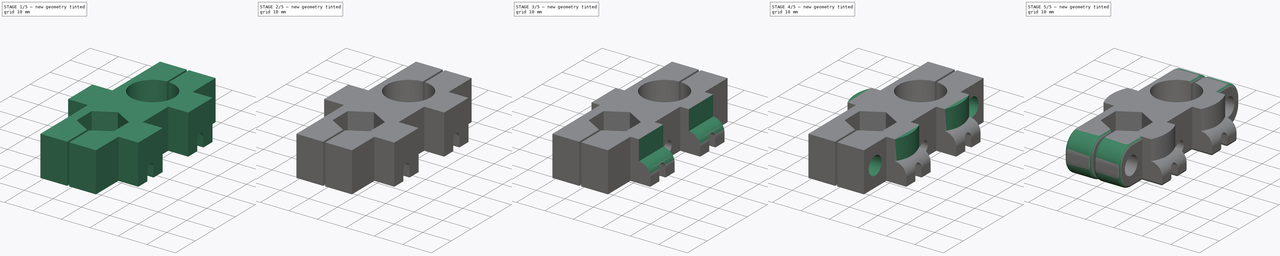
[diagram: build sequence overview — one tinted view per stage of 5, left to right]
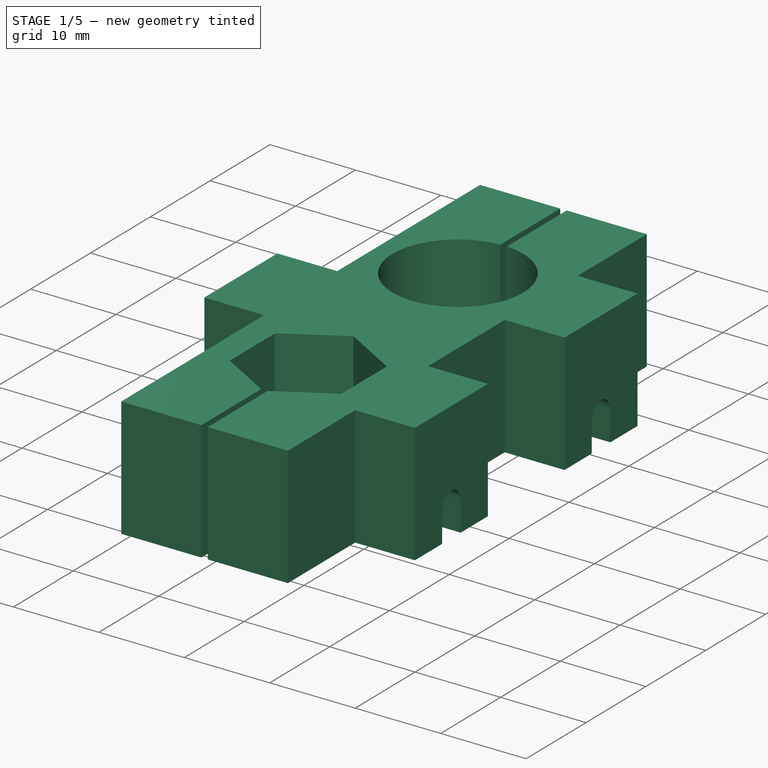
[diagram: stage 1 of 5 — iso view after this stage's code; geometry added in this stage tinted green]
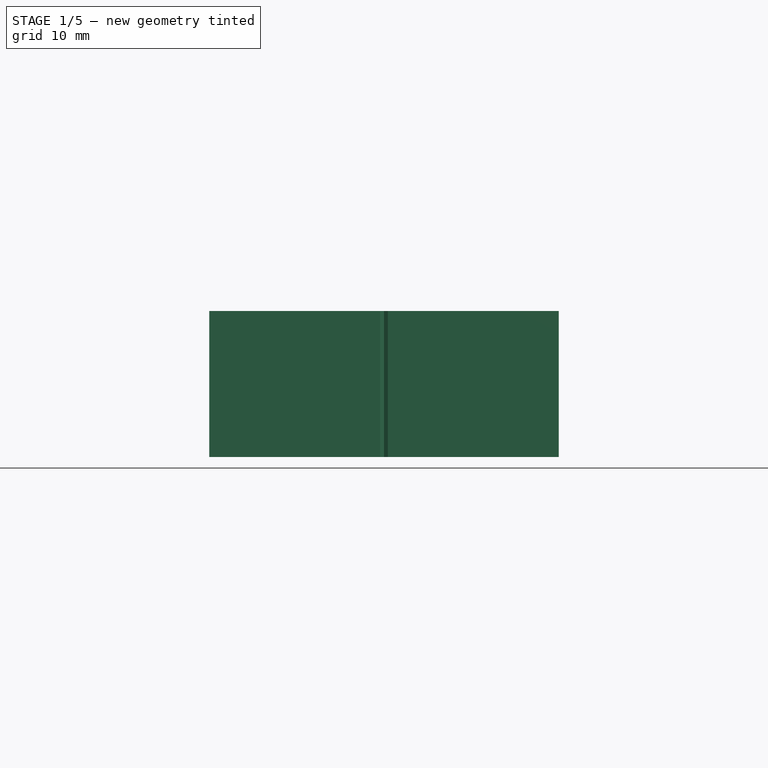
[diagram: stage 1 of 5 — front view after this stage's code; geometry added in this stage tinted green]
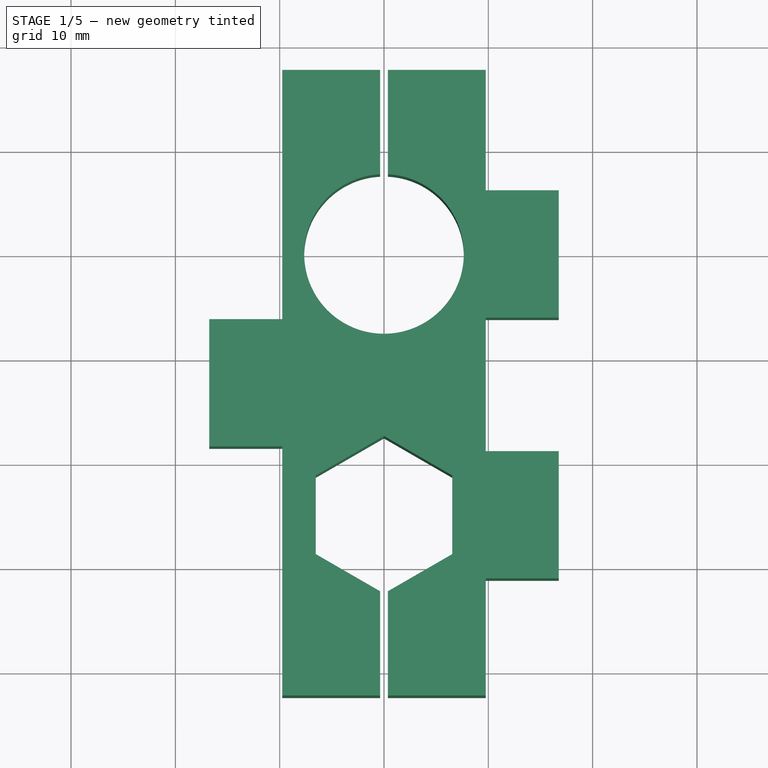
[diagram: stage 1 of 5 — top view after this stage's code; geometry added in this stage tinted green]
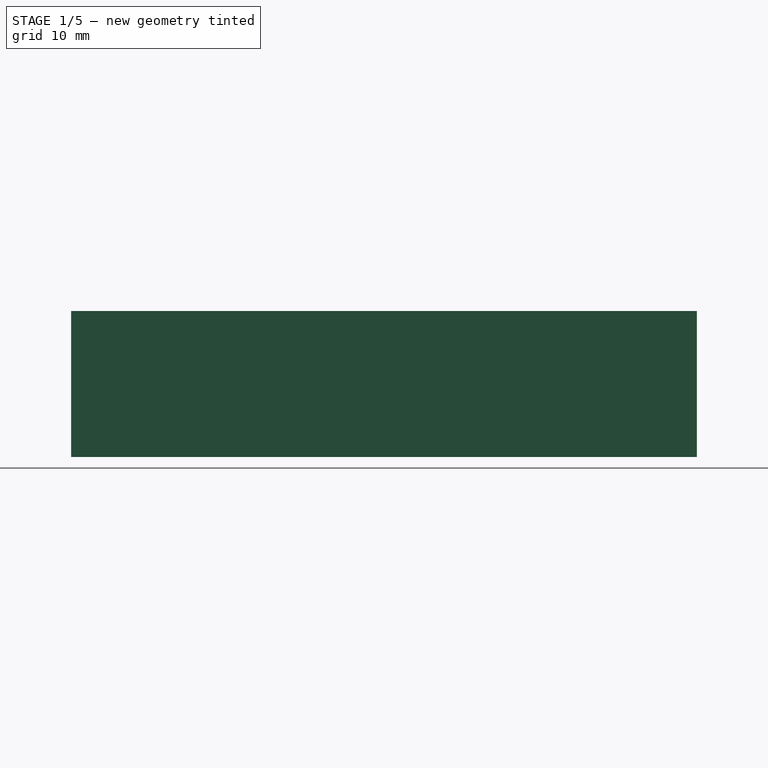
[diagram: stage 1 of 5 — right view after this stage's code; geometry added in this stage tinted green]
FCSTD DOCUMENT  (FreeCAD 0.16RUnknown)
Label: nut-and-bearing-mount.002
License: All rights reserved
LicenseURL: http://en.wikipedia.org/wiki/All_rights_reserved
objects: Sketcher::SketchObject×14, PartDesign::Pocket×12, Part::Extrusion×2, Part::Fillet×2, Part::MultiFuse×1
note: 43 computed .brp shape members not serialized (recipe doc carries the construction recipe); baked Part::Feature solids carry a one-line shape summary decoded from their .brp

FEATURE [Sketcher::SketchObject] Sketch
  sketch-geometry (38):
    g0: LineSegment [constr] StartX=-0.375 StartY=7.6408 StartZ=0 EndX=0.375 EndY=7.6408 EndZ=0
    g1: Circle [constr] CenterX=0 CenterY=-25 CenterZ=0 NormalX=0 NormalY=0 NormalZ=1 Radius=7.55
    g2: LineSegment StartX=-6.53849 StartY=-28.775 StartZ=0 EndX=-6.53849 EndY=-21.225 EndZ=0
    g3: LineSegment StartX=-6.53849 StartY=-21.225 StartZ=0 EndX=0 EndY=-17.45 EndZ=0
    g4: LineSegment StartX=0 StartY=-17.45 StartZ=0 EndX=6.53849 EndY=-21.225 EndZ=0
    g5: LineSegment StartX=6.53849 StartY=-21.225 StartZ=0 EndX=6.53849 EndY=-28.775 EndZ=0
    g6: LineSegment StartX=6.53849 StartY=-28.775 StartZ=0 EndX=0.375 EndY=-32.3335 EndZ=0
    g7: LineSegment [constr] StartX=0.375 StartY=-32.3335 StartZ=0 EndX=0 EndY=-32.55 EndZ=0
    g8: LineSegment [constr] StartX=0 StartY=-32.55 StartZ=0 EndX=-0.375 EndY=-32.3335 EndZ=0
    g9: LineSegment StartX=-0.375 StartY=-32.3335 StartZ=0 EndX=-6.53849 EndY=-28.775 EndZ=0
    g10: LineSegment [constr] StartX=-0.375 StartY=-32.3335 StartZ=0 EndX=0.375 EndY=-32.3335 EndZ=0
    g11: LineSegment StartX=-0.375 StartY=7.6408 StartZ=0 EndX=-0.375 EndY=17.6408 EndZ=0
    g12: LineSegment StartX=-0.375 StartY=17.6408 StartZ=0 EndX=-9.75 EndY=17.6408 EndZ=0
    g13: LineSegment StartX=-9.75 StartY=17.6408 StartZ=0 EndX=-9.75 EndY=-6.24635 EndZ=0
    g14: LineSegment StartX=-9.75 StartY=-6.24635 StartZ=0 EndX=-16.75 EndY=-6.24635 EndZ=0
    g15: LineSegment StartX=-16.75 StartY=-6.24635 StartZ=0 EndX=-16.75 EndY=-18.4463 EndZ=0
    g16: LineSegment StartX=-16.75 StartY=-18.4463 StartZ=0 EndX=-9.75 EndY=-18.4463 EndZ=0
    g17: LineSegment StartX=-9.75 StartY=-18.4463 StartZ=0 EndX=-9.75 EndY=-42.3335 EndZ=0
    g18: LineSegment StartX=-9.75 StartY=-42.3335 StartZ=0 EndX=-0.375 EndY=-42.3335 EndZ=0
    g19: LineSegment StartX=-0.375 StartY=-42.3335 StartZ=0 EndX=-0.375 EndY=-32.3335 EndZ=0
    g20: LineSegment StartX=0.375 StartY=7.6408 StartZ=0 EndX=0.375 EndY=17.6408 EndZ=0
    g21: LineSegment StartX=0.375 StartY=17.6408 StartZ=0 EndX=9.75 EndY=17.6408 EndZ=0
    g22: LineSegment StartX=9.75 StartY=17.6408 StartZ=0 EndX=9.75 EndY=6.1 EndZ=0
    g23: LineSegment StartX=9.75 StartY=6.1 StartZ=0 EndX=16.75 EndY=6.1 EndZ=0
    g24: LineSegment StartX=16.75 StartY=6.1 StartZ=0 EndX=16.75 EndY=-6.1 EndZ=0
    g25: LineSegment StartX=16.75 StartY=-6.1 StartZ=0 EndX=9.75 EndY=-6.1 EndZ=0
    g26: LineSegment StartX=9.75 StartY=-6.1 StartZ=0 EndX=9.75 EndY=-18.9 EndZ=0
    g27: LineSegment StartX=9.75 StartY=-18.9 StartZ=0 EndX=16.75 EndY=-18.9 EndZ=0
    g28: LineSegment StartX=16.75 StartY=-18.9 StartZ=0 EndX=16.75 EndY=-31.1 EndZ=0
    g29: LineSegment StartX=16.75 StartY=-31.1 StartZ=0 EndX=9.75 EndY=-31.1 EndZ=0
    g30: LineSegment StartX=9.75 StartY=-31.1 StartZ=0 EndX=9.75 EndY=-42.3335 EndZ=0
    g31: LineSegment StartX=9.75 StartY=-42.3335 StartZ=0 EndX=0.375 EndY=-42.3335 EndZ=0
    g32: LineSegment StartX=0.375 StartY=-42.3335 StartZ=0 EndX=0.375 EndY=-32.3335 EndZ=0
    g33: ArcOfCircle CenterX=0 CenterY=0 CenterZ=0 NormalX=0 NormalY=0 NormalZ=1 Radius=7.65 StartAngle=1.61984 EndAngle=7.80494
    g34: LineSegment [constr] StartX=9.75 StartY=6.1 StartZ=0 EndX=0 EndY=0 EndZ=0
    g35: LineSegment [constr] StartX=0 StartY=0 StartZ=0 EndX=9.75 EndY=-6.1 EndZ=0
    g36: LineSegment [constr] StartX=9.75 StartY=-18.9 StartZ=0 EndX=0 EndY=-25 EndZ=0
    g37: LineSegment [constr] StartX=0 StartY=-25 StartZ=0 EndX=9.75 EndY=-31.1 EndZ=0
  constraints (107):
    c: Horizontal(g0)
    c: DistanceX(g0,g0) = 0.75
    c: Vertical(g2)
    c: Coincident(g2,g3)
    c: Coincident(g3,g4)
    c: Coincident(g4,g5)
    c: Vertical(g5)
    c: Coincident(g5,g6)
    c: Coincident(g6,g7)
    c: Coincident(g7,g8)
    c: Coincident(g8,g9)
    c: Coincident(g2,g9)
    c: Horizontal(g10)
    c: Coincident(g6,g10)
    c: Coincident(g8,g10)
    c: Parallel(g8,g9)
    c: Parallel(g7,g6)
    c: Equal(g8,g7)
    c: PointOnObject(g2,g1)
    c: PointOnObject(g7,g1)
    c: PointOnObject(g5,g1)
    c: PointOnObject(g4,g1)
    c: PointOnObject(g3,g1)
    c: PointOnObject(g2,g1)
    c: Equal(g2,g3)
    c: Equal(g3,g4)
    c: Equal(g4,g5)
    c: Equal(g10,g0)
    c: PointOnObject(g1,g-2)
    c: Vertical(g11)
    c: Coincident(g11,g12)
    c: Horizontal(g12)
    c: Coincident(g12,g13)
    c: Vertical(g13)
    c: Coincident(g13,g14)
    c: Horizontal(g14)
    c: Coincident(g14,g15)
    c: Vertical(g15)
    c: Coincident(g15,g16)
    c: Horizontal(g16)
    c: Coincident(g16,g17)
    c: Vertical(g17)
    c: Coincident(g17,g18)
    c: Horizontal(g18)
    c: Coincident(g18,g19)
    c: Vertical(g19)
    c: Vertical(g20)
    c: Coincident(g20,g21)
    c: Horizontal(g21)
    c: Coincident(g21,g22)
    c: Vertical(g22)
    c: Coincident(g22,g23)
    c: Horizontal(g23)
    c: Coincident(g23,g24)
    c: Vertical(g24)
    c: Coincident(g24,g25)
    c: Horizontal(g25)
    c: Coincident(g25,g26)
    c: Vertical(g26)
    c: Coincident(g26,g27)
    c: Horizontal(g27)
    c: Coincident(g27,g28)
    c: Vertical(g28)
    c: Coincident(g28,g29)
    c: Horizontal(g29)
    c: Coincident(g29,g30)
    c: Vertical(g30)
    c: Coincident(g30,g31)
    c: Horizontal(g31)
    c: Coincident(g31,g32)
    c: Vertical(g32)
    c: Coincident(g8,g19)
    c: Coincident(g6,g32)
    c: Coincident(g33,g-1)
    c: Coincident(g0,g11)
    c: Coincident(g0,g33)
    c: Coincident(g0,g20)
    c: Coincident(g0,g33)
    c: Radius(g1) = 7.55
    c: Radius(g33) = 7.65
    c: Equal(g23,g14)
    c: Equal(g23,g27)
    c: Equal(g14,g16)
    c: Equal(g27,g29)
    c: Equal(g24,g15)
    c: Equal(g24,g28)
    c: DistanceY(g24,g24) = 12.2
    c: DistanceX(g23,g23) = 7
    c: Coincident(g34,g35)
    c: Coincident(g36,g37)
    c: Coincident(g26,g36)
    c: Coincident(g1,g36)
    c: Coincident(g29,g37)
    c: Coincident(g25,g35)
    c: Coincident(g22,g34)
    c: Coincident(g33,g34)
    c: Equal(g37,g36)
    c: Equal(g35,g34)
    c: Equal(g18,g31)
    c: Equal(g19,g32)
    c: Equal(g11,g20)
    c: Equal(g11,g19)
    c: DistanceY(g11,g11) = 10
    c: DistanceX(g16,g26) = 19.5
    c: Equal(g12,g21)
    c: Equal(g17,g13)
    c: DistanceY(g1,g-1) = 25
FEATURE [Part::Extrusion] Extrude
  Base = -> Sketch
  Dir = (0,0,14)
  Solid = true
FEATURE [Sketcher::SketchObject] Sketch001
  ExternalGeometry = -> [Extrude]
  Placement = pos=(0,0,0) rot=(1,0,0;3.14159rad)
  Support = -> Extrude [Face30]
  sketch-geometry (30):
    g0: LineSegment [constr] StartX=-16.75 StartY=18.4463 StartZ=0 EndX=-16.75 EndY=13.8963 EndZ=0
    g1: LineSegment [constr] StartX=-16.75 StartY=6.24635 StartZ=0 EndX=-16.75 EndY=10.7963 EndZ=0
    g2: LineSegment [constr] StartX=16.75 StartY=31.1 StartZ=0 EndX=16.75 EndY=26.55 EndZ=0
    g3: LineSegment [constr] StartX=16.75 StartY=23.45 StartZ=0 EndX=16.75 EndY=18.9 EndZ=0
    g4: LineSegment [constr] StartX=16.75 StartY=6.1 StartZ=0 EndX=16.75 EndY=1.55 EndZ=0
    g5: LineSegment [constr] StartX=16.75 StartY=-1.55 StartZ=0 EndX=16.75 EndY=-6.1 EndZ=0
    g6: LineSegment StartX=-16.75 StartY=10.7963 StartZ=0 EndX=-16.75 EndY=13.8963 EndZ=0
    g7: LineSegment StartX=-16.75 StartY=13.8963 StartZ=0 EndX=-12.75 EndY=13.8963 EndZ=0
    g8: LineSegment StartX=-12.75 StartY=13.8963 StartZ=0 EndX=-12.75 EndY=15.4713 EndZ=0
    g9: LineSegment StartX=-12.75 StartY=15.4713 StartZ=0 EndX=-10.5 EndY=15.4713 EndZ=0
    g10: LineSegment StartX=-10.5 StartY=15.4713 StartZ=0 EndX=-10.5 EndY=9.22135 EndZ=0
    g11: LineSegment StartX=-10.5 StartY=9.22135 StartZ=0 EndX=-12.75 EndY=9.22135 EndZ=0
    g12: LineSegment StartX=-12.75 StartY=9.22135 StartZ=0 EndX=-12.75 EndY=10.7963 EndZ=0
    g13: LineSegment StartX=-12.75 StartY=10.7963 StartZ=0 EndX=-16.75 EndY=10.7963 EndZ=0
    g14: LineSegment StartX=16.75 StartY=23.45 StartZ=0 EndX=16.75 EndY=26.55 EndZ=0
    g15: LineSegment StartX=16.75 StartY=26.55 StartZ=0 EndX=12.75 EndY=26.55 EndZ=0
    g16: LineSegment StartX=12.75 StartY=26.55 StartZ=0 EndX=12.75 EndY=28.125 EndZ=0
    g17: LineSegment StartX=12.75 StartY=28.125 StartZ=0 EndX=10.5 EndY=28.125 EndZ=0
    g18: LineSegment StartX=10.5 StartY=28.125 StartZ=0 EndX=10.5 EndY=21.875 EndZ=0
    g19: LineSegment StartX=10.5 StartY=21.875 StartZ=0 EndX=12.75 EndY=21.875 EndZ=0
    g20: LineSegment StartX=12.75 StartY=21.875 StartZ=0 EndX=12.75 EndY=23.45 EndZ=0
    g21: LineSegment StartX=12.75 StartY=23.45 StartZ=0 EndX=16.75 EndY=23.45 EndZ=0
    g22: LineSegment StartX=16.75 StartY=-1.55 StartZ=0 EndX=16.75 EndY=1.55 EndZ=0
    g23: LineSegment StartX=16.75 StartY=1.55 StartZ=0 EndX=12.75 EndY=1.55 EndZ=0
    g24: LineSegment StartX=12.75 StartY=1.55 StartZ=0 EndX=12.75 EndY=3.125 EndZ=0
    g25: LineSegment StartX=12.75 StartY=3.125 StartZ=0 EndX=10.5 EndY=3.125 EndZ=0
    g26: LineSegment StartX=10.5 StartY=3.125 StartZ=0 EndX=10.5 EndY=-3.125 EndZ=0
    g27: LineSegment StartX=10.5 StartY=-3.125 StartZ=0 EndX=12.75 EndY=-3.125 EndZ=0
    g28: LineSegment StartX=12.75 StartY=-3.125 StartZ=0 EndX=12.75 EndY=-1.55 EndZ=0
    g29: LineSegment StartX=12.75 StartY=-1.55 StartZ=0 EndX=16.75 EndY=-1.55 EndZ=0
  constraints (87):
    c: Vertical(g0)
    c: Vertical(g1)
    c: Vertical(g2)
    c: Vertical(g3)
    c: Vertical(g4)
    c: Vertical(g5)
    c: Vertical(g6)
    c: Coincident(g6,g7)
    c: Horizontal(g7)
    c: Coincident(g7,g8)
    c: Vertical(g8)
    c: Coincident(g8,g9)
    c: Horizontal(g9)
    c: Coincident(g9,g10)
    c: Vertical(g10)
    c: Coincident(g10,g11)
    c: Horizontal(g11)
    c: Coincident(g11,g12)
    c: Vertical(g12)
    c: Coincident(g12,g13)
    c: Horizontal(g13)
    c: Vertical(g14)
    c: Coincident(g14,g15)
    c: Horizontal(g15)
    c: Coincident(g15,g16)
    c: Vertical(g16)
    c: Coincident(g16,g17)
    c: Horizontal(g17)
    c: Coincident(g17,g18)
    c: Vertical(g18)
    c: Coincident(g18,g19)
    c: Horizontal(g19)
    c: Coincident(g19,g20)
    c: Vertical(g20)
    c: Coincident(g20,g21)
    c: Horizontal(g21)
    c: Vertical(g22)
    c: Coincident(g22,g23)
    c: Horizontal(g23)
    c: Coincident(g23,g24)
    c: Vertical(g24)
    c: Coincident(g24,g25)
    c: Horizontal(g25)
    c: Coincident(g25,g26)
    c: Vertical(g26)
    c: Coincident(g26,g27)
    c: Horizontal(g27)
    c: Coincident(g27,g28)
    c: Vertical(g28)
    c: Coincident(g28,g29)
    c: Horizontal(g29)
    c: Coincident(g22,g29)
    c: Coincident(g6,g13)
    c: Coincident(g14,g21)
    c: Coincident(g2,g14)
    c: Coincident(g3,g14)
    c: Coincident(g4,g22)
    c: Coincident(g5,g22)
    c: Coincident(g1,g6)
    c: Coincident(g0,g6)
    c: Equal(g0,g1)
    c: Equal(g12,g8)
    c: Equal(g20,g16)
    c: Equal(g2,g3)
    c: Equal(g4,g5)
    c: Equal(g28,g24)
    c: Equal(g23,g29)
    c: Equal(g21,g15)
    c: Equal(g7,g13)
    c: Equal(g18,g10)
    c: Equal(g18,g26)
    c: Equal(g14,g22)
    c: Equal(g14,g6)
    c: Equal(g15,g7)
    c: Equal(g15,g23)
    c: Equal(g17,g9)
    c: Equal(g17,g25)
    c: DistanceY(g18,g18) = 6.25
    c: DistanceY(g14,g14) = 3.1
    c: DistanceX(g15,g15) = 4
    c: DistanceX(g17,g17) = 2.25
    c: Coincident(g4,g-5)
    c: Coincident(g5,g-5)
    c: Coincident(g3,g-4)
    c: Coincident(g2,g-4)
    c: Coincident(g0,g-3)
    c: Coincident(g1,g-3)
FEATURE [PartDesign::Pocket] Pocket
  Length = 3.5
  Sketch = -> Sketch001
  Type = 0
FEATURE [Sketcher::SketchObject] Sketch002
  ExternalGeometry = -> [Pocket]
  Placement = pos=(16.75,0,0) rot=(0.57735,0.57735,0.57735;2.0944rad)
  Support = -> Pocket [Face11]
  sketch-geometry (4):
    g0: LineSegment StartX=-26.55 StartY=3.5 StartZ=0 EndX=-23.45 EndY=3.5 EndZ=0
    g1: LineSegment StartX=-1.55 StartY=3.5 StartZ=0 EndX=1.55 EndY=3.5 EndZ=0
    g2: ArcOfCircle CenterX=-25 CenterY=3.5 CenterZ=0 NormalX=0 NormalY=0 NormalZ=1 Radius=1.55 StartAngle=0 EndAngle=3.14159
    g3: ArcOfCircle CenterX=0 CenterY=3.5 CenterZ=0 NormalX=0 NormalY=0 NormalZ=1 Radius=1.55 StartAngle=0 EndAngle=3.14159
  constraints (12):
    c: Horizontal(g0)
    c: Horizontal(g1)
    c: PointOnObject(g3,g-4)
    c: Coincident(g1,g3)
    c: Coincident(g1,g-4)
    c: Coincident(g1,g3)
    c: Coincident(g1,g-4)
    c: PointOnObject(g2,g-3)
    c: Coincident(g0,g2)
    c: Coincident(g0,g-3)
    c: Coincident(g0,g2)
    c: Coincident(g0,g-3)
FEATURE [PartDesign::Pocket] Pocket001
  Length = 0
  Sketch = -> Sketch002
  Type = 3
  UpToFace = -> Pocket [Face17]
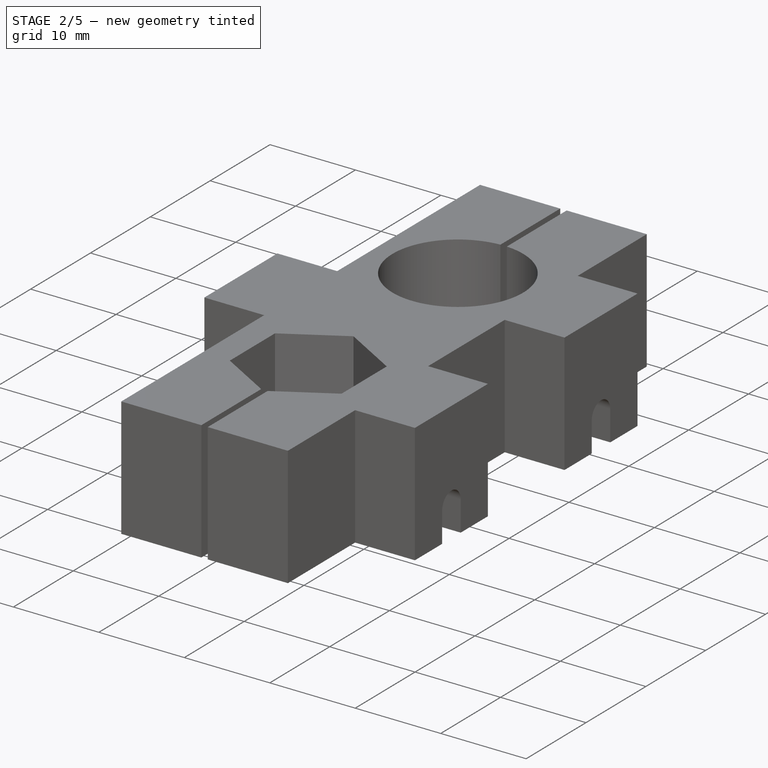
[diagram: stage 2 of 5 — iso view after this stage's code; geometry added in this stage tinted green]
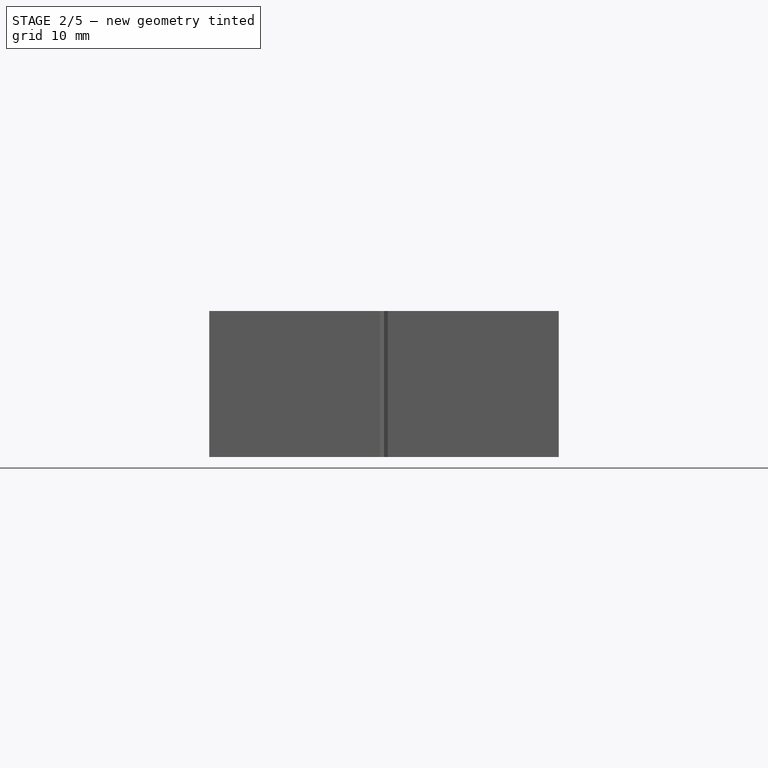
[diagram: stage 2 of 5 — front view after this stage's code; geometry added in this stage tinted green]
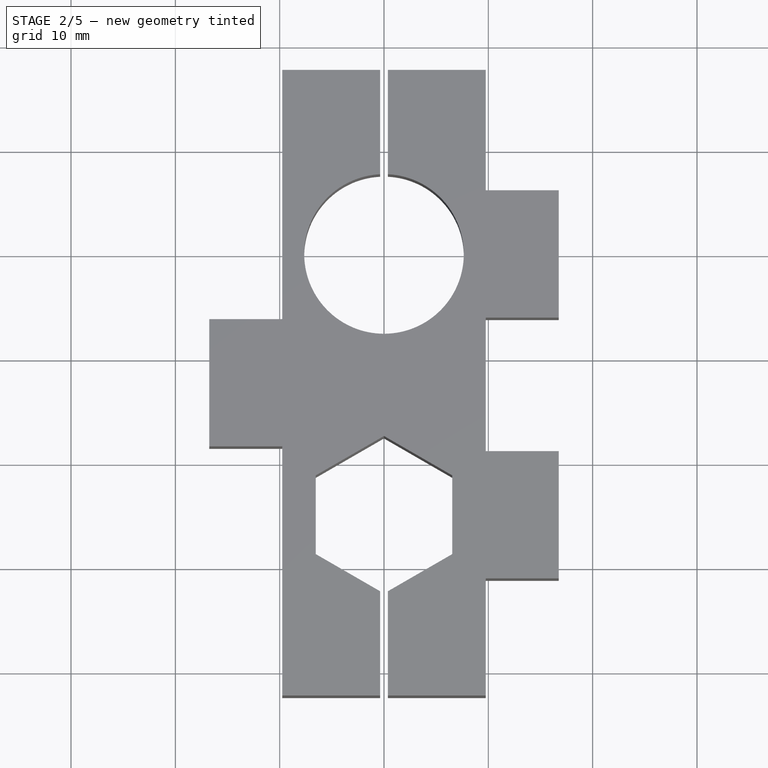
[diagram: stage 2 of 5 — top view after this stage's code; geometry added in this stage tinted green]
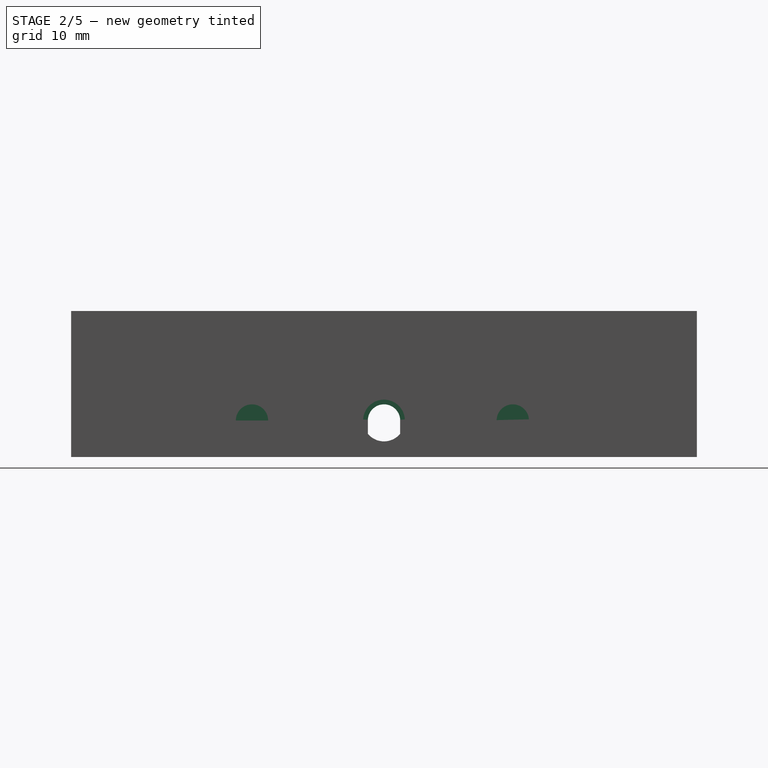
[diagram: stage 2 of 5 — right view after this stage's code; geometry added in this stage tinted green]
FEATURE [Sketcher::SketchObject] Sketch003
  ExternalGeometry = -> [Pocket001]
  Placement = pos=(-16.75,0,0) rot=(0.57735,-0.57735,-0.57735;2.0944rad)
  Support = -> Pocket001 [Face44]
  sketch-geometry (2):
    g0: LineSegment StartX=10.7963 StartY=3.5 StartZ=0 EndX=13.8963 EndY=3.5 EndZ=0
    g1: ArcOfCircle CenterX=12.3463 CenterY=3.5 CenterZ=0 NormalX=0 NormalY=0 NormalZ=1 Radius=1.55 StartAngle=0 EndAngle=3.14159
  constraints (6):
    c: Horizontal(g0)
    c: PointOnObject(g1,g-3)
    c: Coincident(g0,g1)
    c: Coincident(g0,g-3)
    c: Coincident(g0,g1)
    c: Coincident(g0,g-3)
FEATURE [PartDesign::Pocket] Pocket002
  Length = 0
  Sketch = -> Sketch003
  Type = 3
  UpToFace = -> Pocket001 [Face46]
FEATURE [Sketcher::SketchObject] Sketch004
  ExternalGeometry = -> [Pocket002]
  Placement = pos=(10.5,0,0) rot=(0.57735,0.57735,0.57735;2.0944rad)
  Support = -> Pocket002 [Face26]
  sketch-geometry (4):
    g0: LineSegment StartX=3.125 StartY=3.5 StartZ=0 EndX=-3.125 EndY=3.5 EndZ=0
    g1: LineSegment StartX=-21.875 StartY=3.5 StartZ=0 EndX=-28.125 EndY=3.5 EndZ=0
    g2: ArcOfCircle CenterX=0 CenterY=3.5 CenterZ=0 NormalX=0 NormalY=0 NormalZ=1 Radius=3.125 StartAngle=0 EndAngle=3.14159
    g3: ArcOfCircle CenterX=-25 CenterY=3.5 CenterZ=0 NormalX=0 NormalY=0 NormalZ=1 Radius=3.125 StartAngle=0 EndAngle=3.14159
  constraints (12):
    c: Horizontal(g0)
    c: Horizontal(g1)
    c: PointOnObject(g3,g-3)
    c: PointOnObject(g2,g-4)
    c: Coincident(g0,g2)
    c: Coincident(g0,g-4)
    c: Coincident(g0,g2)
    c: Coincident(g0,g-4)
    c: Coincident(g1,g3)
    c: Coincident(g1,g-3)
    c: Coincident(g1,g3)
    c: Coincident(g1,g-3)
FEATURE [PartDesign::Pocket] Pocket003
  Length = 0
  Sketch = -> Sketch004
  Type = 3
  UpToFace = -> Pocket002 [Face17]
FEATURE [Sketcher::SketchObject] Sketch005
  ExternalGeometry = -> [Pocket003]
  Placement = pos=(-10.5,0,0) rot=(0.57735,-0.57735,-0.57735;2.0944rad)
  Support = -> Pocket003 [Face48]
  sketch-geometry (2):
    g0: LineSegment StartX=9.22135 StartY=3.5 StartZ=0 EndX=15.4713 EndY=3.5 EndZ=0
    g1: ArcOfCircle CenterX=12.3463 CenterY=3.5 CenterZ=0 NormalX=0 NormalY=0 NormalZ=1 Radius=3.125 StartAngle=0 EndAngle=3.14159
  constraints (6):
    c: Horizontal(g0)
    c: PointOnObject(g1,g-3)
    c: Coincident(g0,g1)
    c: Coincident(g0,g-3)
    c: Coincident(g0,g1)
    c: Coincident(g0,g-3)
FEATURE [PartDesign::Pocket] Pocket004
  Length = 0
  Sketch = -> Sketch005
  Type = 3
  UpToFace = -> Pocket003 [Face50]
FEATURE [Sketcher::SketchObject] Sketch006
  ExternalGeometry = -> [Pocket004]
  Placement = pos=(-10.5,0,0) rot=(0.57735,-0.57735,-0.57735;2.0944rad)
  Support = -> Pocket004 [Face64]
  sketch-geometry (1):
    g0: Circle CenterX=12.3463 CenterY=3.5 CenterZ=0 NormalX=0 NormalY=0 NormalZ=1 Radius=2
  constraints (2):
    c: Coincident(g0,g-3)
    c: Radius(g0) = 2
FEATURE [PartDesign::Pocket] Pocket005
  Length = 5
  Sketch = -> Sketch006
  Type = 1
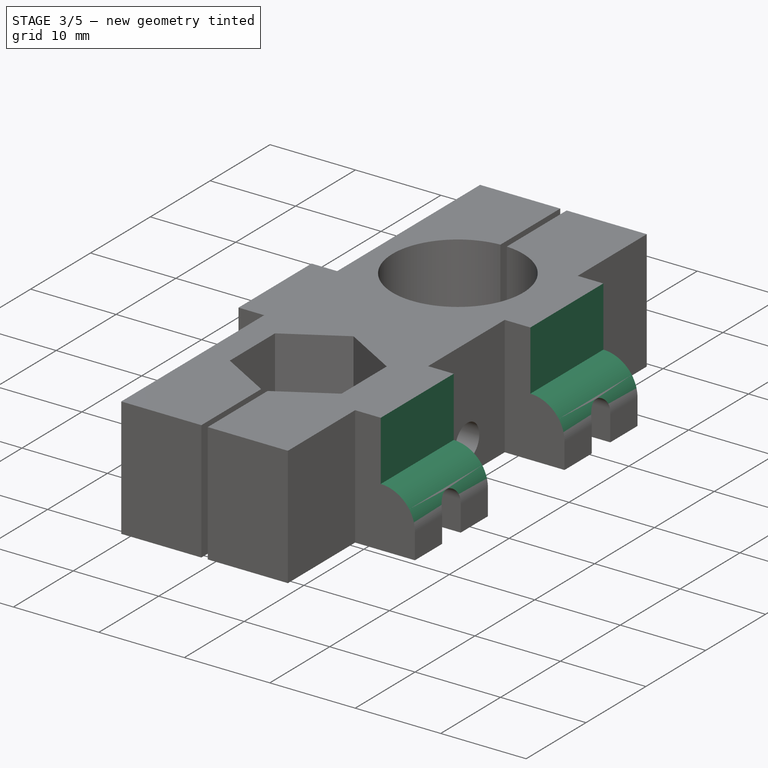
[diagram: stage 3 of 5 — iso view after this stage's code; geometry added in this stage tinted green]
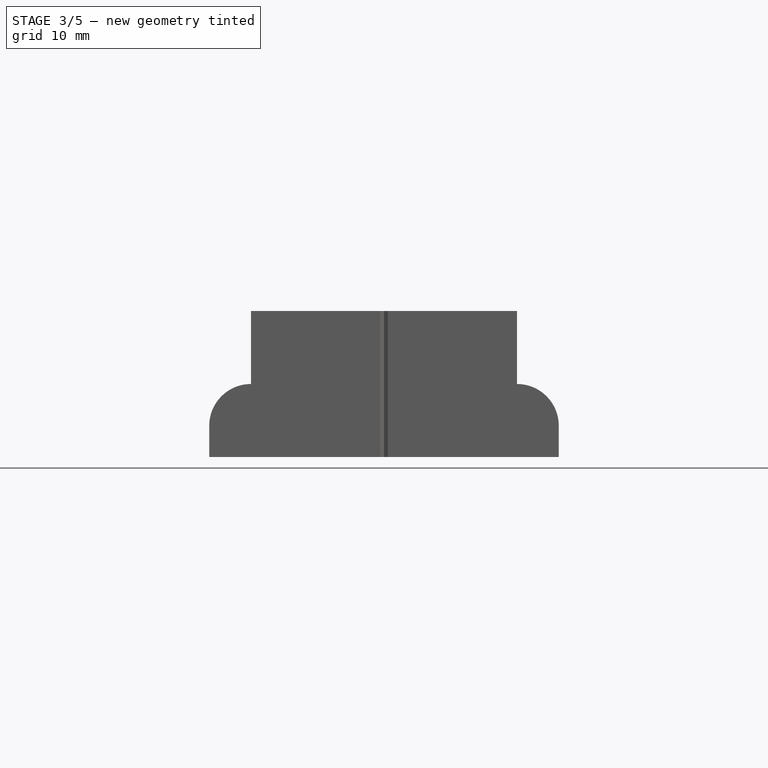
[diagram: stage 3 of 5 — front view after this stage's code; geometry added in this stage tinted green]
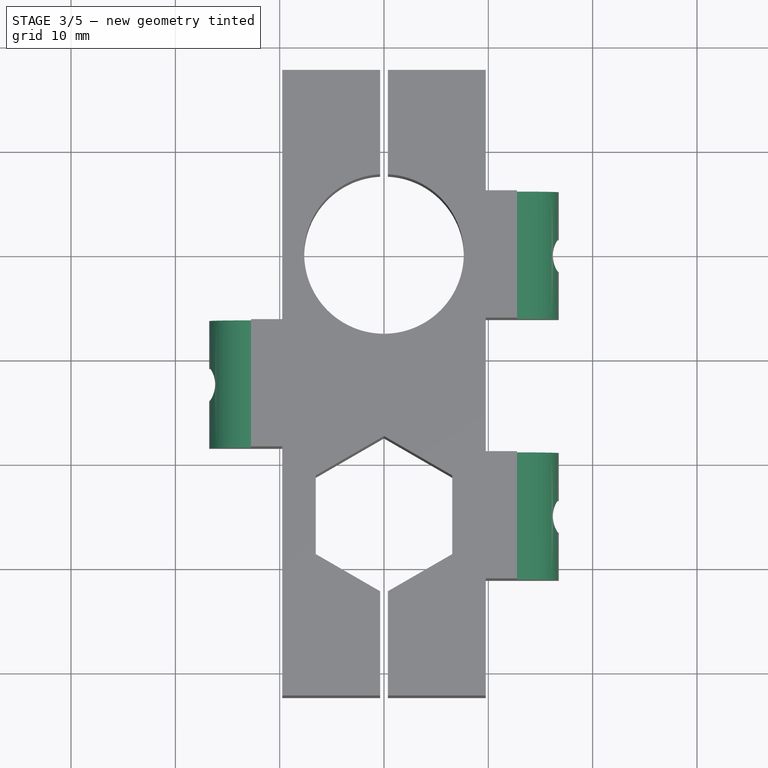
[diagram: stage 3 of 5 — top view after this stage's code; geometry added in this stage tinted green]
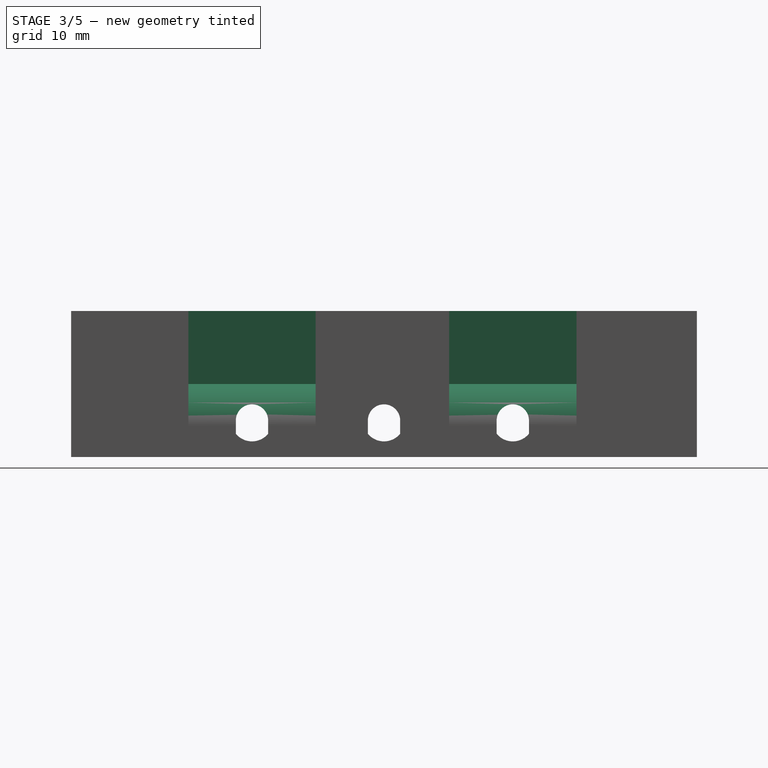
[diagram: stage 3 of 5 — right view after this stage's code; geometry added in this stage tinted green]
FEATURE [Sketcher::SketchObject] Sketch007
  ExternalGeometry = -> [Pocket005]
  Placement = pos=(10.5,0,0) rot=(0.57735,0.57735,0.57735;2.0944rad)
  Support = -> Pocket005 [Face56]
  sketch-geometry (2):
    g0: Circle CenterX=-25 CenterY=3.5 CenterZ=0 NormalX=0 NormalY=0 NormalZ=1 Radius=2
    g1: Circle CenterX=0 CenterY=3.5 CenterZ=0 NormalX=0 NormalY=0 NormalZ=1 Radius=2
  constraints (4):
    c: Coincident(g1,g-3)
    c: Coincident(g0,g-4)
    c: Equal(g0,g1)
    c: Radius(g0) = 2
FEATURE [PartDesign::Pocket] Pocket006
  Length = 5
  Sketch = -> Sketch007
  Type = 1
FEATURE [Sketcher::SketchObject] Sketch008
  ExternalGeometry = -> [Pocket006]
  Placement = pos=(0,-31.1,0) rot=(1,0,0;1.5708rad)
  Support = -> Pocket006 [Face32]
  sketch-geometry (7):
    g0: LineSegment [constr] StartX=16.75 StartY=0 StartZ=0 EndX=16.75 EndY=3 EndZ=0
    g1: LineSegment [constr] StartX=16.75 StartY=3 StartZ=0 EndX=12.75 EndY=3 EndZ=0
    g2: LineSegment [constr] StartX=12.75 StartY=3 StartZ=0 EndX=12.75 EndY=7 EndZ=0
    g3: LineSegment StartX=12.75 StartY=7 StartZ=0 EndX=12.75 EndY=14 EndZ=0
    g4: LineSegment StartX=12.75 StartY=14 StartZ=0 EndX=16.75 EndY=14 EndZ=0
    g5: LineSegment StartX=16.75 StartY=14 StartZ=0 EndX=16.75 EndY=3 EndZ=0
    g6: ArcOfCircle CenterX=12.75 CenterY=3 CenterZ=0 NormalX=0 NormalY=0 NormalZ=1 Radius=4 StartAngle=0 EndAngle=1.5708
  constraints (19):
    c: Vertical(g0)
    c: Coincident(g0,g1)
    c: Horizontal(g1)
    c: Coincident(g1,g2)
    c: Vertical(g2)
    c: Coincident(g2,g3)
    c: Vertical(g3)
    c: Coincident(g3,g4)
    c: Horizontal(g4)
    c: Coincident(g4,g5)
    c: Vertical(g5)
    c: Coincident(g0,g5)
    c: Coincident(g1,g6)
    c: Coincident(g2,g6)
    c: Coincident(g0,g6)
    c: Coincident(g0,g-3)
    c: Coincident(g4,g-3)
    c: DistanceY(g3,g3) = 7
    c: DistanceY(g2,g2) = 4
FEATURE [PartDesign::Pocket] Pocket007
  Length = 5
  Sketch = -> Sketch008
  Type = 1
FEATURE [Sketcher::SketchObject] Sketch009
  ExternalGeometry = -> [Pocket007]
  Placement = pos=(0,-18.4463,0) rot=(1,0,0;1.5708rad)
  Support = -> Pocket007 [Face47]
  sketch-geometry (7):
    g0: LineSegment [constr] StartX=-16.75 StartY=0 StartZ=0 EndX=-16.75 EndY=3 EndZ=0
    g1: LineSegment [constr] StartX=-16.75 StartY=3 StartZ=0 EndX=-12.75 EndY=3 EndZ=0
    g2: LineSegment [constr] StartX=-12.75 StartY=3 StartZ=0 EndX=-12.75 EndY=7 EndZ=0
    g3: LineSegment StartX=-12.75 StartY=7 StartZ=0 EndX=-12.75 EndY=14 EndZ=0
    g4: LineSegment StartX=-12.75 StartY=14 StartZ=0 EndX=-16.75 EndY=14 EndZ=0
    g5: LineSegment StartX=-16.75 StartY=14 StartZ=0 EndX=-16.75 EndY=3 EndZ=0
    g6: ArcOfCircle CenterX=-12.75 CenterY=3 CenterZ=0 NormalX=0 NormalY=0 NormalZ=1 Radius=4 StartAngle=1.5708 EndAngle=3.14159
  constraints (19):
    c: Vertical(g0)
    c: Coincident(g0,g1)
    c: Horizontal(g1)
    c: Coincident(g1,g2)
    c: Vertical(g2)
    c: Coincident(g2,g3)
    c: Vertical(g3)
    c: Coincident(g3,g4)
    c: Horizontal(g4)
    c: Coincident(g4,g5)
    c: Vertical(g5)
    c: Coincident(g0,g5)
    c: Coincident(g1,g6)
    c: Coincident(g2,g6)
    c: Coincident(g0,g6)
    c: DistanceY(g3,g3) = 7
    c: DistanceY(g2,g2) = 4
    c: Coincident(g4,g-3)
    c: Coincident(g0,g-3)
FEATURE [PartDesign::Pocket] Pocket008
  Length = 5
  Sketch = -> Sketch009
  Type = 1
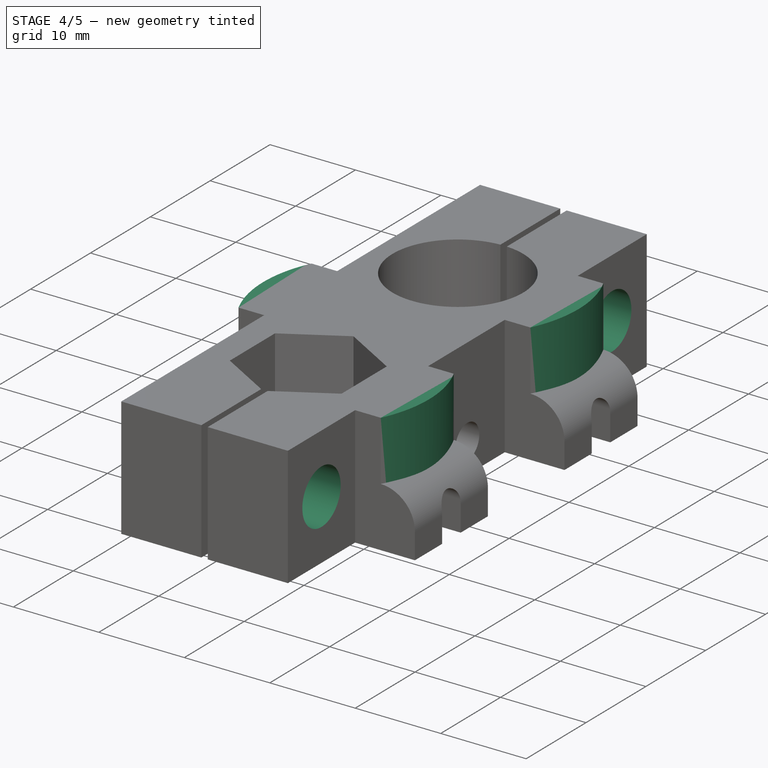
[diagram: stage 4 of 5 — iso view after this stage's code; geometry added in this stage tinted green]
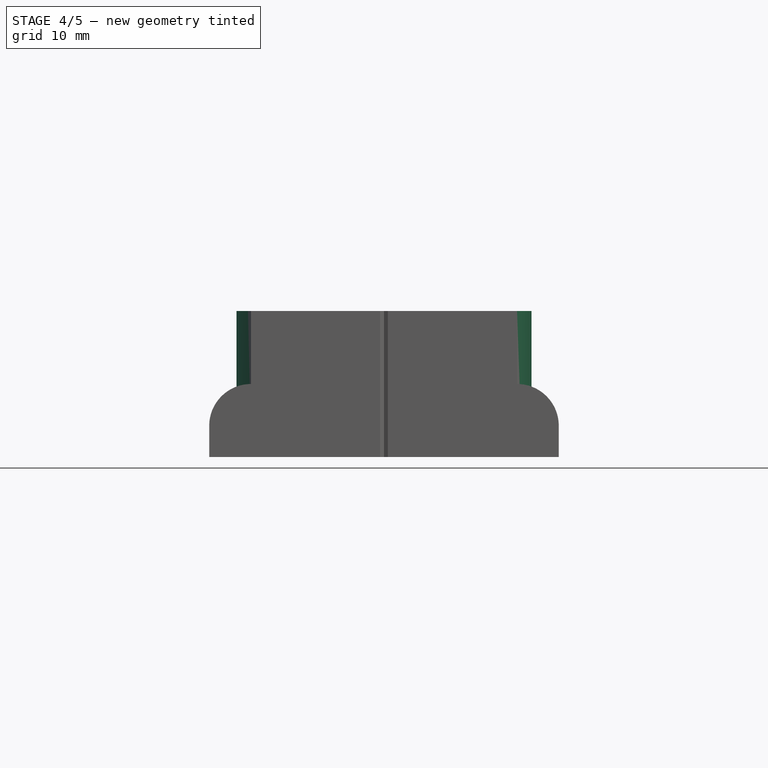
[diagram: stage 4 of 5 — front view after this stage's code; geometry added in this stage tinted green]
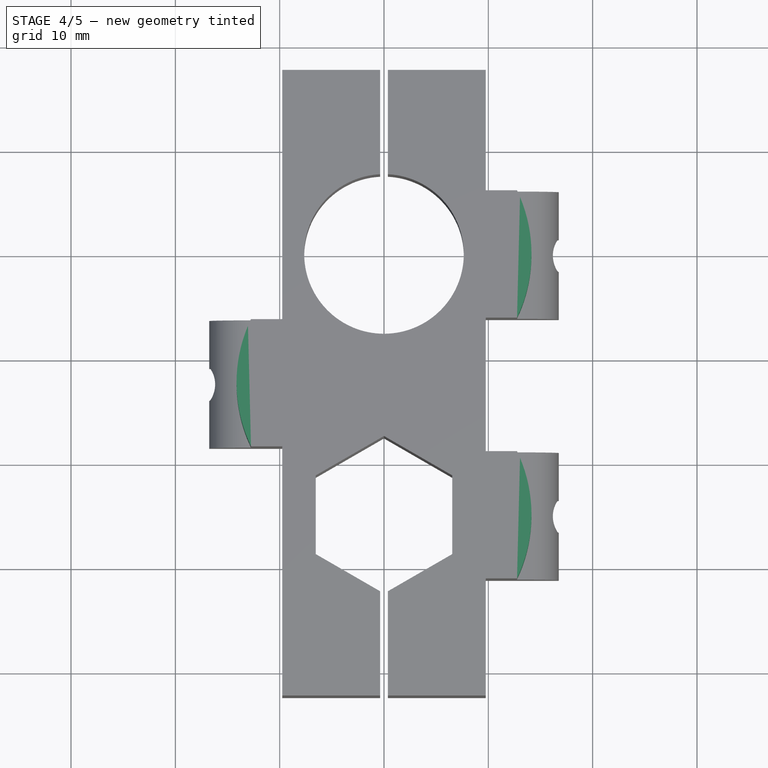
[diagram: stage 4 of 5 — top view after this stage's code; geometry added in this stage tinted green]
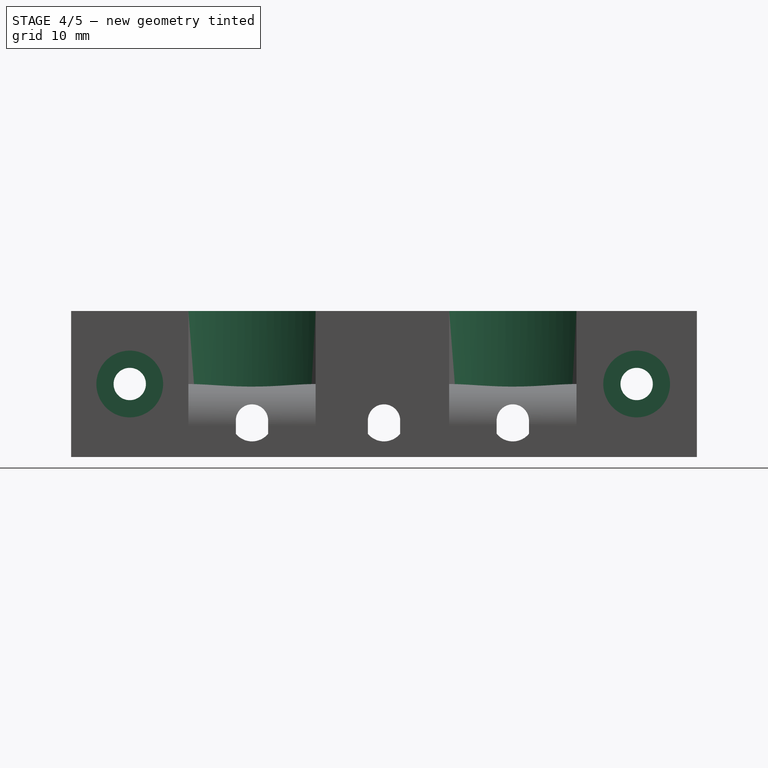
[diagram: stage 4 of 5 — right view after this stage's code; geometry added in this stage tinted green]
FEATURE [Sketcher::SketchObject] Sketch010
  ExternalGeometry = -> [Pocket008]
  Placement = pos=(0,0,14) rot=(0,0,1;0rad)
  Support = -> Pocket008 [Face5]
  sketch-geometry (6):
    g0: LineSegment StartX=-12.75 StartY=-6.24635 StartZ=0 EndX=-12.75 EndY=-18.4463 EndZ=0
    g1: LineSegment StartX=12.75 StartY=-18.9 StartZ=0 EndX=12.75 EndY=-31.1 EndZ=0
    g2: LineSegment StartX=12.75 StartY=-6.1 StartZ=0 EndX=12.75 EndY=6.1 EndZ=0
    g3: ArcOfCircle CenterX=0.0378011 CenterY=0 CenterZ=0 NormalX=0 NormalY=0 NormalZ=1 Radius=14.1 StartAngle=5.83578 EndAngle=6.73059
    g4: ArcOfCircle CenterX=-0.0378011 CenterY=-12.3463 CenterZ=0 NormalX=0 NormalY=0 NormalZ=1 Radius=14.1 StartAngle=2.69419 EndAngle=3.58899
    g5: ArcOfCircle CenterX=0.0378011 CenterY=-25 CenterZ=0 NormalX=0 NormalY=0 NormalZ=1 Radius=14.1 StartAngle=5.83578 EndAngle=6.73059
  constraints (18):
    c: Vertical(g0)
    c: Vertical(g1)
    c: Vertical(g2)
    c: Coincident(g1,g5)
    c: Coincident(g1,g5)
    c: Coincident(g0,g4)
    c: Coincident(g0,g4)
    c: Coincident(g2,g3)
    c: Coincident(g2,g3)
    c: Equal(g3,g4)
    c: Equal(g3,g5)
    c: Radius(g3) = 14.1
    c: Coincident(g0,g-5)
    c: Coincident(g0,g-5)
    c: Coincident(g1,g-4)
    c: Coincident(g1,g-4)
    c: Coincident(g2,g-3)
    c: Coincident(g2,g-3)
FEATURE [Part::Extrusion] Extrude001
  Base = -> Sketch010
  Dir = (0,0,-7.5)
  Solid = true
FEATURE [Part::MultiFuse] Fusion
  Shapes = -> [Extrude001,Pocket008]
FEATURE [Sketcher::SketchObject] Sketch011
  ExternalGeometry = -> [Fusion]
  Placement = pos=(9.75,0,0) rot=(0.57735,0.57735,0.57735;2.0944rad)
  Support = -> Fusion [Face35]
  sketch-geometry (6):
    g0: LineSegment [constr] StartX=-42.3335 StartY=0 StartZ=0 EndX=-36.7167 EndY=7 EndZ=0
    g1: LineSegment [constr] StartX=-36.7167 StartY=7 StartZ=0 EndX=-31.1 EndY=14 EndZ=0
    g2: LineSegment [constr] StartX=6.1 StartY=14 StartZ=0 EndX=11.8704 EndY=7 EndZ=0
    g3: LineSegment [constr] StartX=11.8704 StartY=7 StartZ=0 EndX=17.6408 EndY=0 EndZ=0
    g4: Circle CenterX=-36.7167 CenterY=7 CenterZ=0 NormalX=0 NormalY=0 NormalZ=1 Radius=1.55
    g5: Circle CenterX=11.8704 CenterY=7 CenterZ=0 NormalX=0 NormalY=0 NormalZ=1 Radius=1.55
  constraints (14):
    c: Coincident(g0,g1)
    c: Coincident(g2,g3)
    c: Coincident(g3,g-4)
    c: Coincident(g2,g-3)
    c: Parallel(g0,g1)
    c: Equal(g0,g1)
    c: Parallel(g2,g3)
    c: Equal(g2,g3)
    c: Coincident(g2,g5)
    c: Coincident(g0,g4)
    c: Equal(g4,g5)
    c: Radius(g4) = 1.55
    c: Coincident(g0,g-6)
    c: Coincident(g1,g-5)
FEATURE [PartDesign::Pocket] Pocket009
  Length = 5
  Sketch = -> Sketch011
  Type = 1
FEATURE [Sketcher::SketchObject] Sketch012
  ExternalGeometry = -> [Pocket009]
  Placement = pos=(9.75,0,0) rot=(0.57735,0.57735,0.57735;2.0944rad)
  Support = -> Pocket009 [Face35]
  sketch-geometry (2):
    g0: Circle CenterX=-36.7167 CenterY=7 CenterZ=0 NormalX=0 NormalY=0 NormalZ=1 Radius=3.2
    g1: Circle CenterX=11.8704 CenterY=7 CenterZ=0 NormalX=0 NormalY=0 NormalZ=1 Radius=3.2
  constraints (2):
    c: Equal(g1,g0)
    c: Radius(g0) = 3.2
FEATURE [PartDesign::Pocket] Pocket010
  Length = 5.5
  Sketch = -> Sketch012
  Type = 0
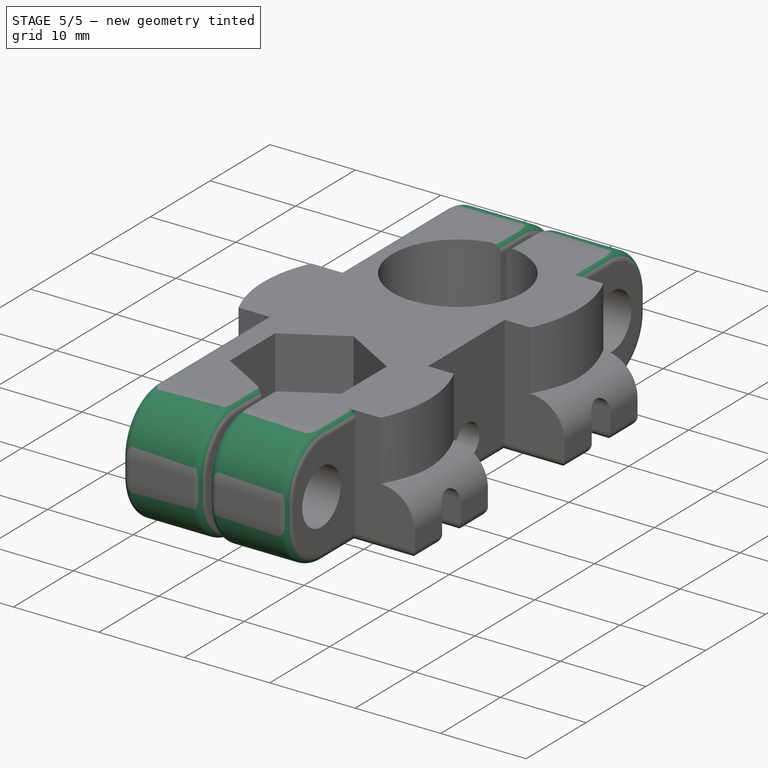
[diagram: stage 5 of 5 — iso view after this stage's code; geometry added in this stage tinted green]
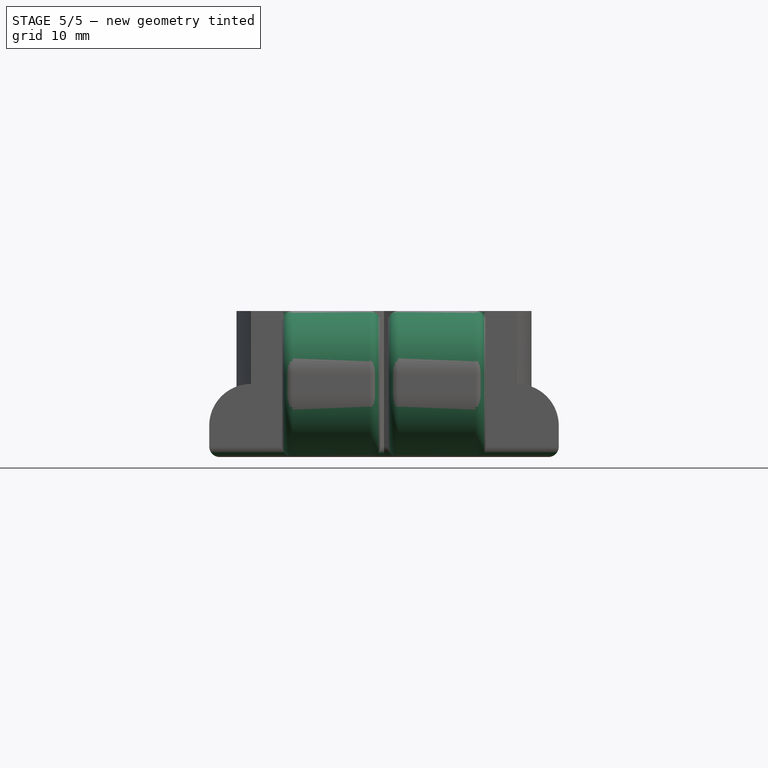
[diagram: stage 5 of 5 — front view after this stage's code; geometry added in this stage tinted green]
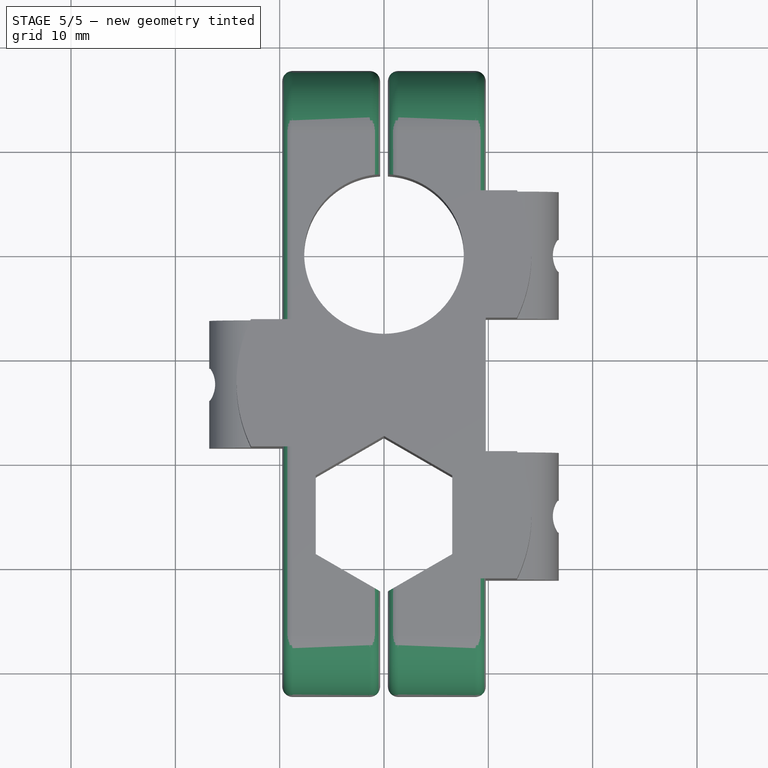
[diagram: stage 5 of 5 — top view after this stage's code; geometry added in this stage tinted green]
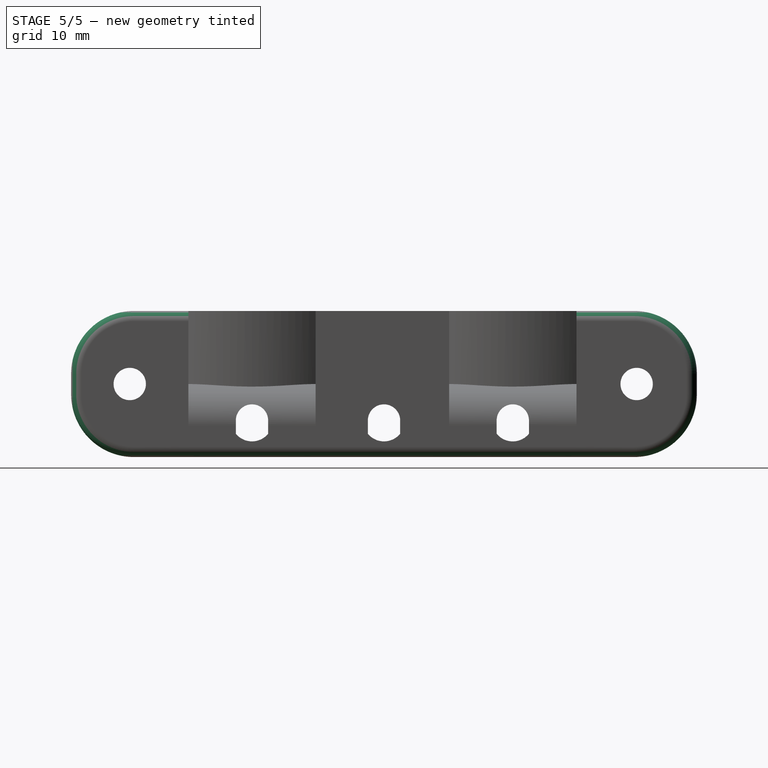
[diagram: stage 5 of 5 — right view after this stage's code; geometry added in this stage tinted green]
FEATURE [Sketcher::SketchObject] Sketch013
  ExternalGeometry = -> [Pocket010]
  Placement = pos=(-9.75,0,0) rot=(0.57735,-0.57735,-0.57735;2.0944rad)
  Support = -> Pocket010 [Face46]
  sketch-geometry (14):
    g0: LineSegment StartX=-11.8704 StartY=10.25 StartZ=0 EndX=-14.685 EndY=8.625 EndZ=0
    g1: LineSegment StartX=-14.685 StartY=8.625 StartZ=0 EndX=-14.685 EndY=5.375 EndZ=0
    g2: LineSegment StartX=-14.685 StartY=5.375 StartZ=0 EndX=-11.8704 EndY=3.75 EndZ=0
    g3: LineSegment StartX=-11.8704 StartY=3.75 StartZ=0 EndX=-9.05582 EndY=5.375 EndZ=0
    g4: LineSegment StartX=-9.05582 StartY=5.375 StartZ=0 EndX=-9.05582 EndY=8.625 EndZ=0
    g5: LineSegment StartX=-9.05582 StartY=8.625 StartZ=0 EndX=-11.8704 EndY=10.25 EndZ=0
    g6: Circle [constr] CenterX=-11.8704 CenterY=7 CenterZ=0 NormalX=0 NormalY=0 NormalZ=1 Radius=3.25
    g7: LineSegment StartX=36.7167 StartY=10.25 StartZ=0 EndX=33.9022 EndY=8.625 EndZ=0
    g8: LineSegment StartX=33.9022 StartY=8.625 StartZ=0 EndX=33.9022 EndY=5.375 EndZ=0
    g9: LineSegment StartX=33.9022 StartY=5.375 StartZ=0 EndX=36.7167 EndY=3.75 EndZ=0
    g10: LineSegment StartX=36.7167 StartY=3.75 StartZ=0 EndX=39.5313 EndY=5.375 EndZ=0
    g11: LineSegment StartX=39.5313 StartY=5.375 StartZ=0 EndX=39.5313 EndY=8.625 EndZ=0
    g12: LineSegment StartX=39.5313 StartY=8.625 StartZ=0 EndX=36.7167 EndY=10.25 EndZ=0
    g13: Circle [constr] CenterX=36.7167 CenterY=7 CenterZ=0 NormalX=0 NormalY=0 NormalZ=1 Radius=3.25
  constraints (32):
    c: Coincident(g0,g1)
    c: Coincident(g1,g2)
    c: Coincident(g2,g3)
    c: Coincident(g3,g4)
    c: Coincident(g4,g5)
    c: Coincident(g5,g0)
    c: Equal(g0, g1-g5) x5
    c: PointOnObject(g0,g6)
    c: PointOnObject(g1,g6)
    c: PointOnObject(g2,g6)
    c: PointOnObject(g3,g6)
    c: PointOnObject(g4,g6)
    c: PointOnObject(g5,g6)
    c: Coincident(g7,g8)
    c: Coincident(g8,g9)
    c: Coincident(g9,g10)
    c: Coincident(g10,g11)
    c: Coincident(g11,g12)
    c: Coincident(g12,g7)
    c: Equal(g7, g8-g12) x5
    c: PointOnObject(g7,g13)
    c: PointOnObject(g8,g13)
    c: PointOnObject(g9,g13)
    c: PointOnObject(g10,g13)
    c: PointOnObject(g11,g13)
    c: PointOnObject(g12,g13)
    c: Vertical(g8)
    c: Vertical(g4)
    c: Coincident(g6,g-3)
    c: Coincident(g13,g-4)
    c: Equal(g13,g6)
    c: Radius(g6) = 3.25
FEATURE [PartDesign::Pocket] Pocket011
  Length = 5.5
  Sketch = -> Sketch013
  Type = 0
FEATURE [Part::Fillet] Fillet
  Base = -> Pocket011
  Edges = 8 edges r=6: [Edge14,Edge40,Edge49,Edge63,Edge65,Edge66,Edge77,Edge86]
FEATURE [Part::Fillet] Fillet001
  Base = -> Fillet
  Edges = 49 edges r=1: [Edge1,Edge8,Edge10,Edge11,Edge12,Edge14,Edge15,Edge16,Edge17,Edge18,Edge19,Edge20,Edge21,Edge22,Edge23,Edge24,Edge25,Edge26,Edge27,Edge28,Edge29,Edge30,Edge31,Edge32,Edge33,Edge34,Edge35,Edge36,Edge37,Edge38,Edge39,Edge40,Edge42,Edge43,Edge44,Edge45,Edge46,Edge47,Edge48,Edge49,Edge50,Edge51,Edge52,+6 more]
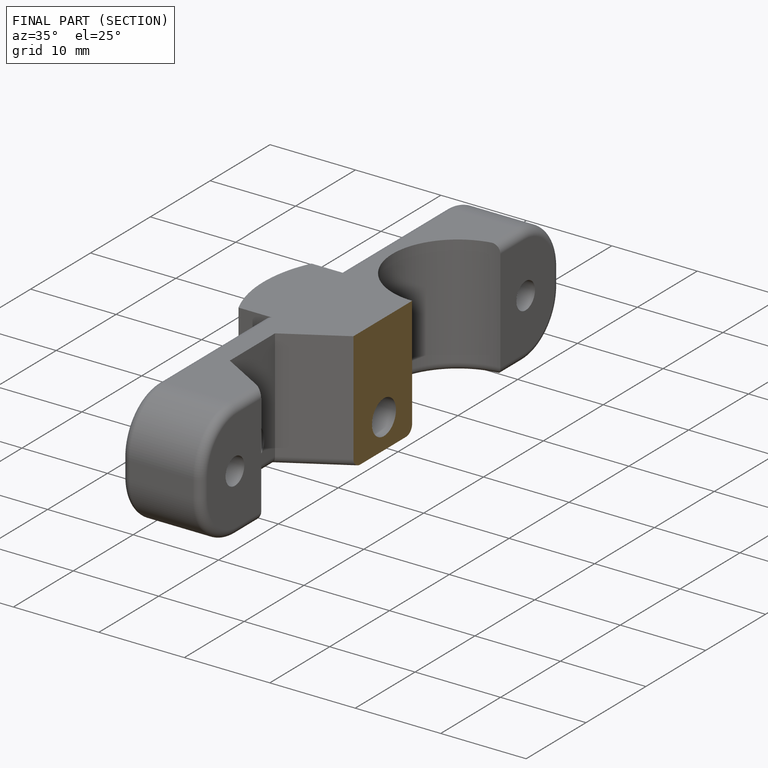
[diagram: finished part — half-section view (interior)]
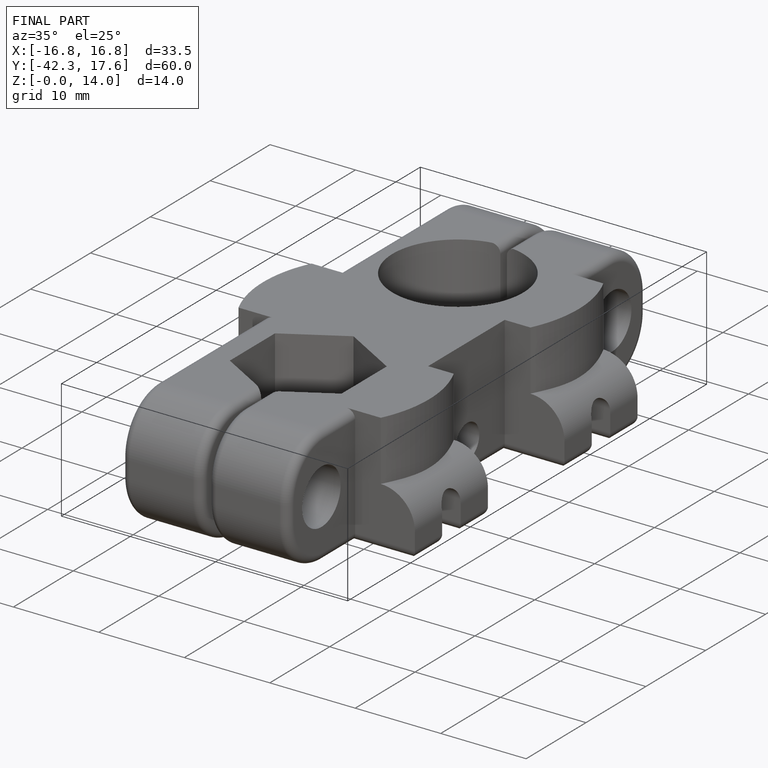
[diagram: finished part — iso view with bounding-box wireframe]
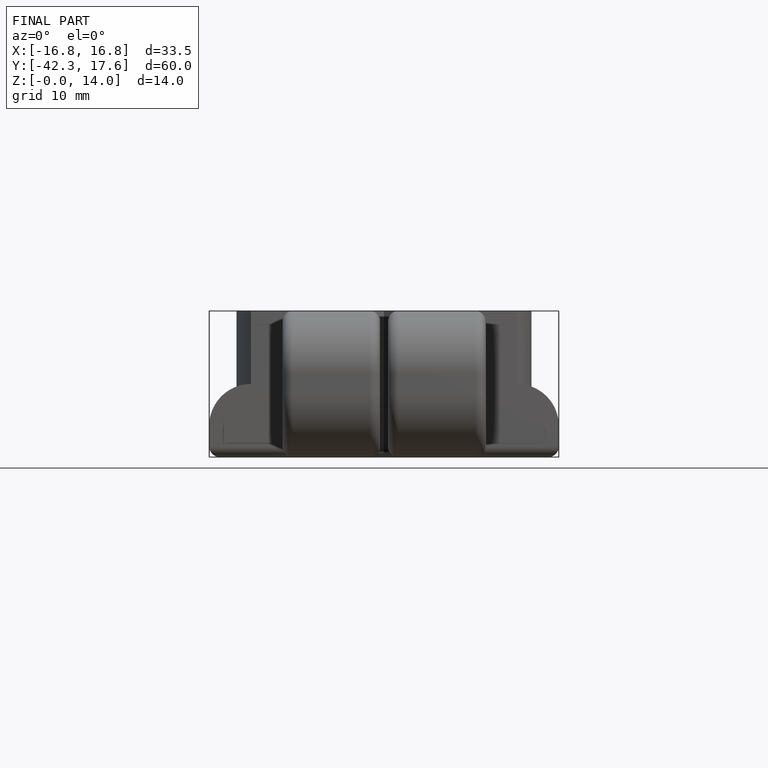
[diagram: finished part — front view with bounding-box wireframe]
